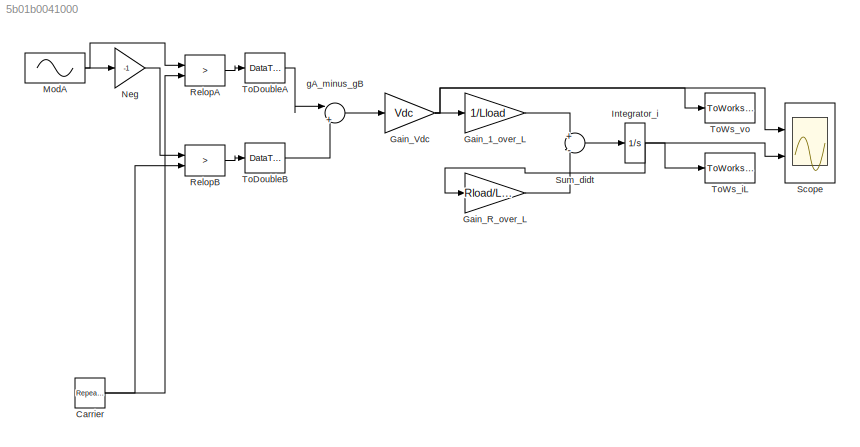
MODEL slx_5b01b0041000
KIND model
CONFIG AbsTol = auto
CONFIG EnableMultiTasking = off
CONFIG FixedStep = auto
CONFIG MaxStep = 1e-06
CONFIG MinStep = auto
CONFIG RelTol = 1e-3
CONFIG SampleTimeConstraint = Unconstrained
CONFIG Solver = ode23tb
CONFIG SolverName = ode23tb
CONFIG StartTime = 0
CONFIG StopTime = 0.1
BLOCK [Reference] Carrier  REF=simulink/Sources/Repeating
Sequence
  Ports = [0, 1]
  SourceBlock = simulink/Sources/Repeating\nSequence
  SourceProductBaseCode = SL
  SourceProductName = Simulink
  SourceType = Repeating table
BLOCK [Gain] Gain_1_over_L
  Gain = 1/Lload
  OutDataTypeStr = Inherit: Inherit via internal rule
  ParamDataTypeStr = Inherit: Inherit via internal rule
  SaturateOnIntegerOverflow = off
BLOCK [Gain] Gain_R_over_L
  Gain = Rload/Lload
  OutDataTypeStr = Inherit: Inherit via internal rule
  ParamDataTypeStr = Inherit: Inherit via internal rule
  SaturateOnIntegerOverflow = off
BLOCK [Gain] Gain_Vdc
  Gain = Vdc
  OutDataTypeStr = Inherit: Inherit via internal rule
  ParamDataTypeStr = Inherit: Inherit via internal rule
  SaturateOnIntegerOverflow = off
BLOCK [Integrator] Integrator_i
  Ports = [1, 1]
BLOCK [Sin] ModA
  Amplitude = 0.9
  Frequency = 2*pi*fm
  Ports = [0, 1]
  SampleTime = 0
BLOCK [Gain] Neg
  Gain = -1
  OutDataTypeStr = Inherit: Inherit via internal rule
  ParamDataTypeStr = Inherit: Inherit via internal rule
  SaturateOnIntegerOverflow = off
BLOCK [RelationalOperator] RelopA
  InputSameDT = off
  Operator = >
  OutDataTypeStr = boolean
  Ports = [2, 1]
  RndMeth = Simplest
BLOCK [RelationalOperator] RelopB
  InputSameDT = off
  Operator = >
  OutDataTypeStr = boolean
  Ports = [2, 1]
  RndMeth = Simplest
BLOCK [Scope] Scope
  Floating = off
  NumInputPorts = 2
  Ports = [2]
BLOCK [Sum] Sum_didt
  IconShape = round
  InputSameDT = off
  Inputs = +-
  OutDataTypeStr = Inherit: Inherit via internal rule
  Ports = [2, 1]
  SaturateOnIntegerOverflow = off
BLOCK [DataTypeConversion] ToDoubleA
  OutDataTypeStr = double
  RndMeth = Floor
  SaturateOnIntegerOverflow = off
BLOCK [DataTypeConversion] ToDoubleB
  OutDataTypeStr = double
  RndMeth = Floor
  SaturateOnIntegerOverflow = off
BLOCK [ToWorkspace] ToWs_iL
  FixptAsFi = on
  MaxDataPoints = inf
  Ports = [1]
  SampleTime = -1
  SaveFormat = Structure With Time
  VariableName = iL
BLOCK [ToWorkspace] ToWs_vo
  FixptAsFi = on
  MaxDataPoints = inf
  Ports = [1]
  SampleTime = -1
  SaveFormat = Structure With Time
  VariableName = vo
BLOCK [Sum] gA_minus_gB
  IconShape = round
  InputSameDT = off
  Inputs = |+-
  OutDataTypeStr = Inherit: Inherit via internal rule
  Ports = [2, 1]
  SaturateOnIntegerOverflow = off
NET Carrier:1 -> RelopA:2, RelopB:2
LINE Gain_1_over_L:1 -> Sum_didt:1
LINE Gain_R_over_L:1 -> Sum_didt:2
NET Gain_Vdc:1 -> Gain_1_over_L:1, Scope:1, ToWs_vo:1
NET Integrator_i:1 -> Gain_R_over_L:1, Scope:2, ToWs_iL:1
NET ModA:1 -> Neg:1, RelopA:1
LINE Neg:1 -> RelopB:1
LINE RelopA:1 -> ToDoubleA:1
LINE RelopB:1 -> ToDoubleB:1
LINE Sum_didt:1 -> Integrator_i:1
LINE ToDoubleA:1 -> gA_minus_gB:1
LINE ToDoubleB:1 -> gA_minus_gB:2
LINE gA_minus_gB:1 -> Gain_Vdc:1
note: NET lines group one-source signal fan-out (src -> all destinations, sorted); 1:1 wires keep LINE
